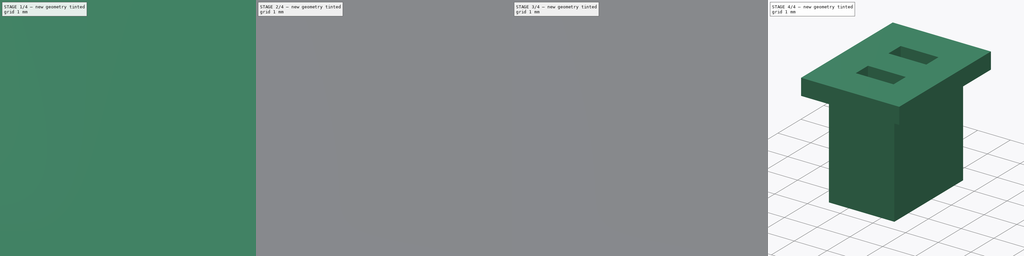
[diagram: build sequence overview — one tinted view per stage of 4, left to right]
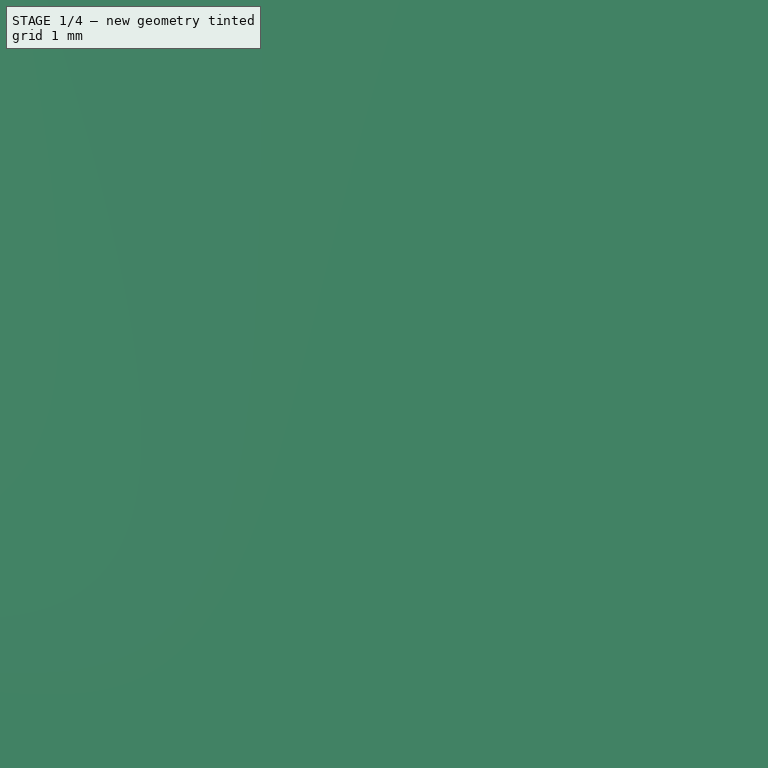
[diagram: stage 1 of 4 — iso view after this stage's code; geometry added in this stage tinted green]
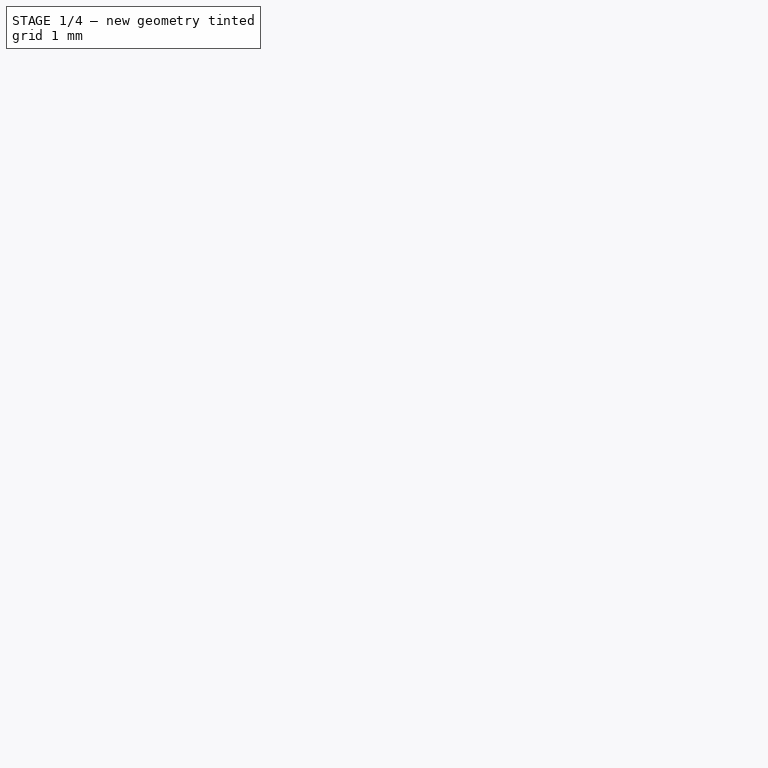
[diagram: stage 1 of 4 — front view after this stage's code; geometry added in this stage tinted green]
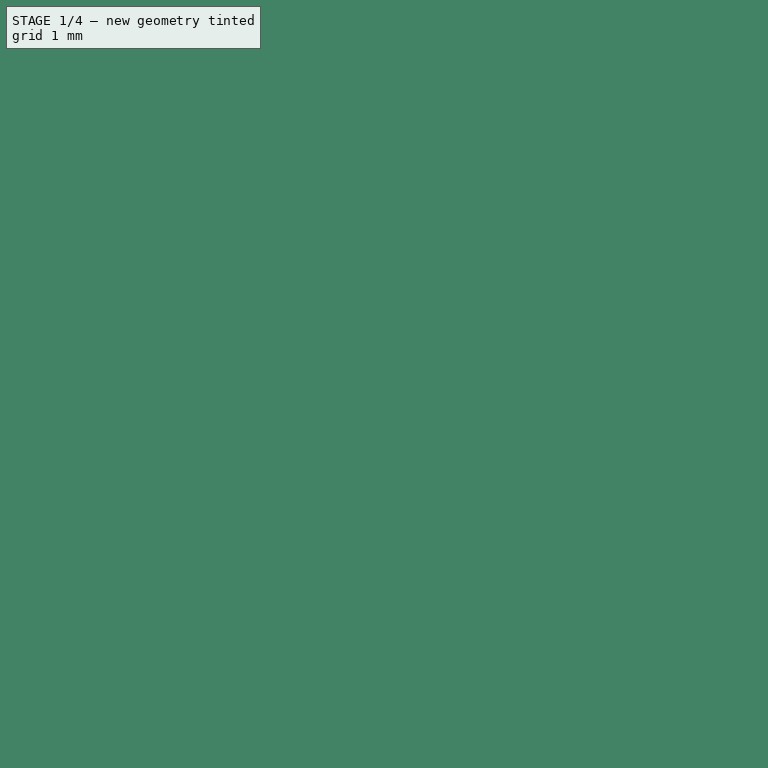
[diagram: stage 1 of 4 — top view after this stage's code; geometry added in this stage tinted green]
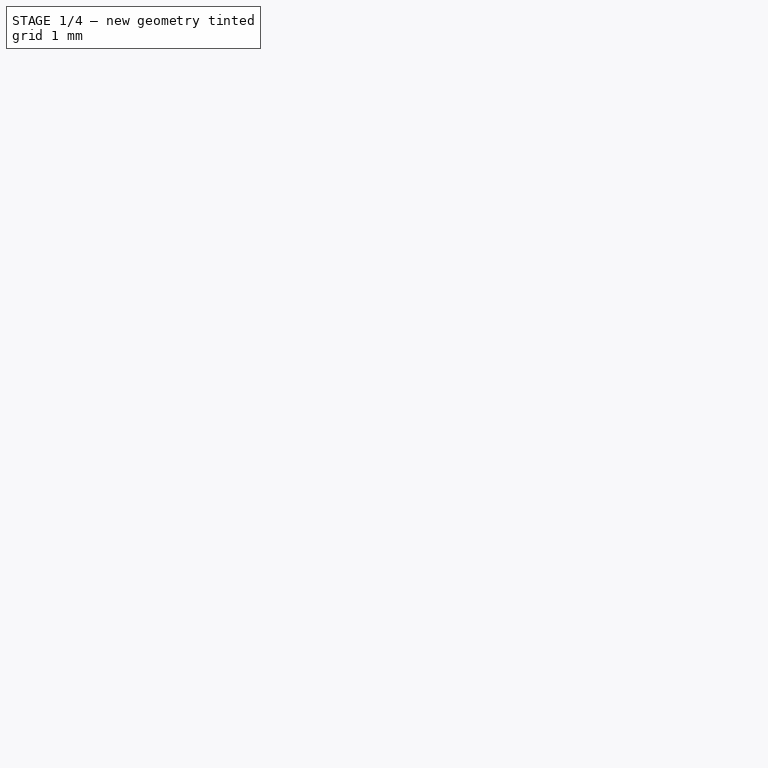
[diagram: stage 1 of 4 — right view after this stage's code; geometry added in this stage tinted green]
FCSTD DOCUMENT  (FreeCAD 0.20R29177 (Git))
Label: Litio_523450
License: All rights reserved
LicenseURL: http://en.wikipedia.org/wiki/All_rights_reserved
objects: Sketcher::SketchObject×13, PartDesign::Pad×4, PartDesign::Plane×4, PartDesign::AdditivePipe×4, PartDesign::Fillet×3, PartDesign::Body×2, PartDesign::ShapeBinder×1, PartDesign::Pocket×1, App::Part×1, Image::ImagePlane×1
note: 44 computed .brp shape members not serialized (recipe doc carries the construction recipe); baked Part::Feature solids carry a one-line shape summary decoded from their .brp

FEATURE [Sketcher::SketchObject] Sketch
  FullyConstrained = true
  MapMode = 5
  Support = -> [XY_Plane001]
  sketch-geometry (5):
    g0: LineSegment StartX=-26 StartY=-17 StartZ=0 EndX=-26 EndY=17 EndZ=0
    g1: LineSegment StartX=-26 StartY=17 StartZ=0 EndX=26 EndY=17 EndZ=0
    g2: LineSegment StartX=26 StartY=17 StartZ=0 EndX=26 EndY=-17 EndZ=0
    g3: LineSegment StartX=26 StartY=-17 StartZ=0 EndX=-26 EndY=-17 EndZ=0
    g4: GeomPoint X=0 Y=0 Z=0
  constraints (12):
    c: Coincident(g0,g1)
    c: Coincident(g1,g2)
    c: Coincident(g2,g3)
    c: Coincident(g3,g0)
    c: Horizontal(g1)
    c: Horizontal(g3)
    c: Vertical(g0)
    c: Vertical(g2)
    c: Symmetric(g1,g0,g4)
    c: Coincident(g4,g-1)
    c: DistanceX(g1,g1) = 52
    c: DistanceY(g2,g2) = 34
FEATURE [PartDesign::Pad] Pad
  Direction = (0,0,1)
  Length = 5
  Length2 = 10
  Midplane = true
  Profile = -> Sketch
  ReferenceAxis = -> Sketch [N_Axis]
  Refine = true
  Type = 0
FEATURE [PartDesign::Fillet] Fillet
  Base = -> Pad [Edge8,Edge5]
  BaseFeature = -> Pad
  Radius = 1
  Refine = true
  SupportTransform = false
  UseAllEdges = false
FEATURE [PartDesign::Fillet] Fillet001
  Base = -> Fillet [Edge15,Edge8]
  BaseFeature = -> Fillet
  Radius = 0.5
  Refine = true
  SupportTransform = false
  UseAllEdges = false
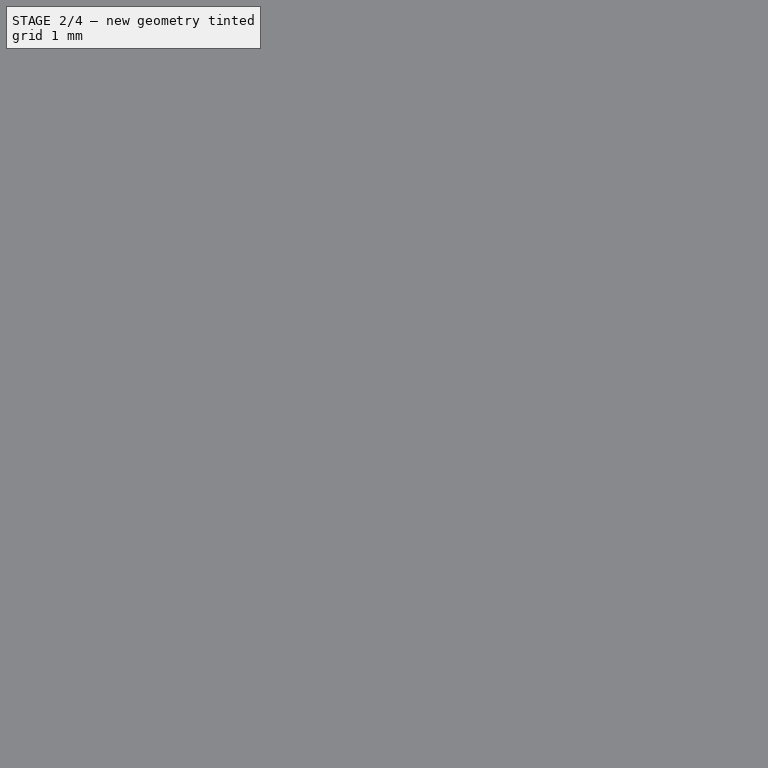
[diagram: stage 2 of 4 — iso view after this stage's code; geometry added in this stage tinted green]
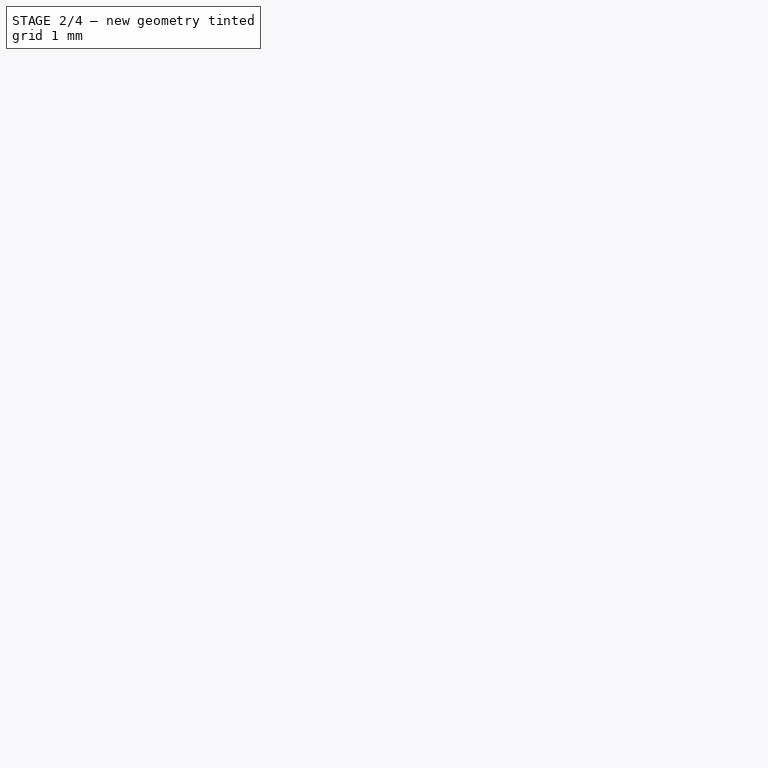
[diagram: stage 2 of 4 — front view after this stage's code; geometry added in this stage tinted green]
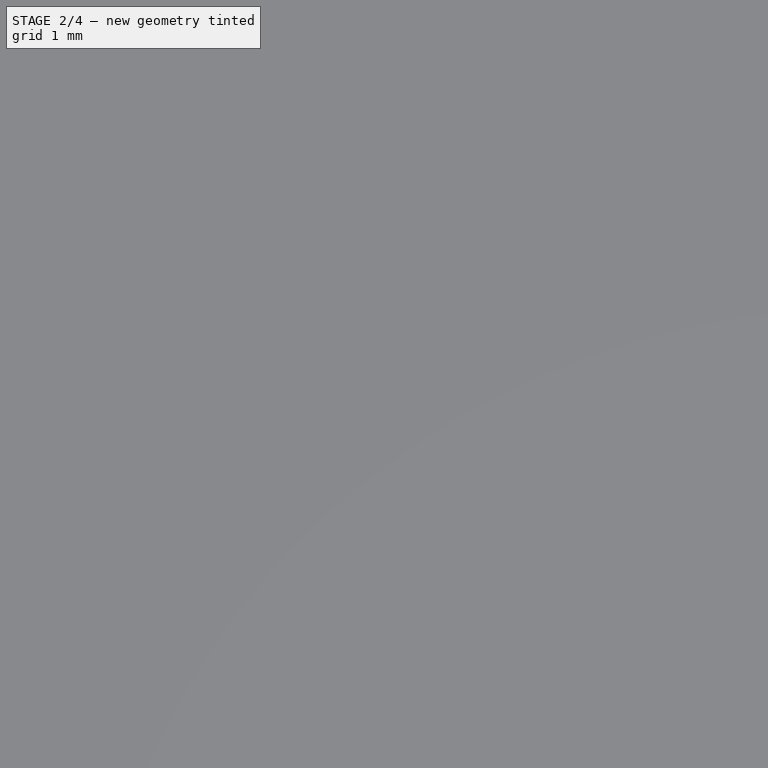
[diagram: stage 2 of 4 — top view after this stage's code; geometry added in this stage tinted green]
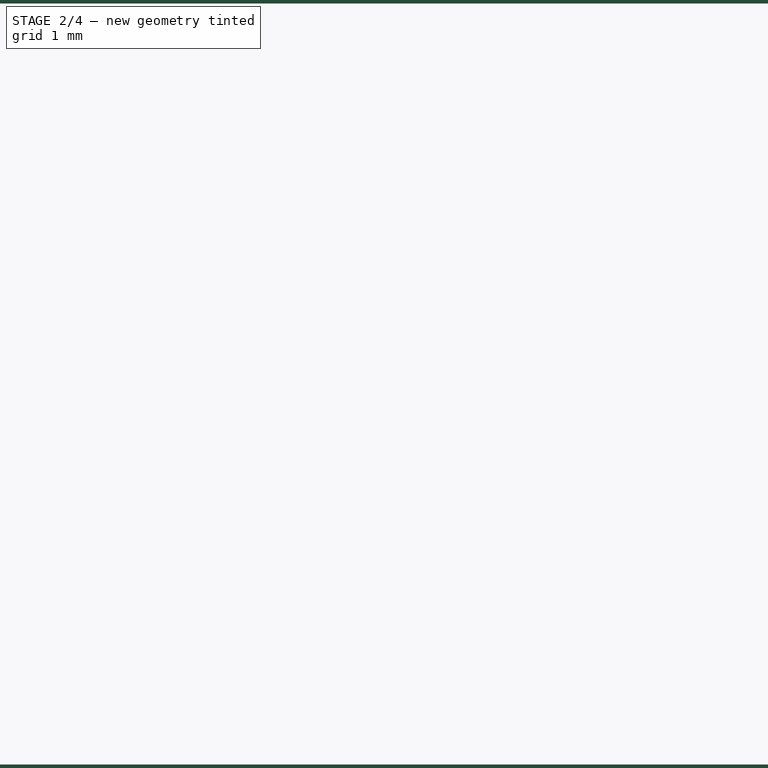
[diagram: stage 2 of 4 — right view after this stage's code; geometry added in this stage tinted green]
FEATURE [Sketcher::SketchObject] Sketch001
  ExternalGeometry = -> [Fillet001]
  FullyConstrained = true
  MapMode = 5
  Placement = pos=(-26,0,0) rot=(0.57735,-0.57735,-0.57735;2.0944rad)
  Support = -> [Fillet001]
  sketch-geometry (10):
    g0: ArcOfCircle CenterX=-16.5 CenterY=-2 CenterZ=0 NormalX=0 NormalY=0 NormalZ=1 AngleXU=0 Radius=0.6 StartAngle=3.14159 EndAngle=4.71239
    g1: LineSegment StartX=-17.1 StartY=-2 StartZ=0 EndX=-17.1 EndY=2 EndZ=0
    g2: ArcOfCircle CenterX=-16.5 CenterY=2 CenterZ=0 NormalX=0 NormalY=0 NormalZ=1 AngleXU=0 Radius=0.6 StartAngle=1.5708 EndAngle=3.14159
    g3: LineSegment StartX=-16.5 StartY=2.6 StartZ=0 EndX=16.5 EndY=2.6 EndZ=0
    g4: ArcOfCircle CenterX=16.5 CenterY=2 CenterZ=0 NormalX=0 NormalY=0 NormalZ=1 AngleXU=0 Radius=0.6 StartAngle=0 EndAngle=1.5708
    g5: LineSegment StartX=17.1 StartY=2 StartZ=0 EndX=17.1 EndY=-2 EndZ=0
    g6: ArcOfCircle CenterX=16.5 CenterY=-2 CenterZ=0 NormalX=0 NormalY=0 NormalZ=1 AngleXU=0 Radius=0.6 StartAngle=4.71239 EndAngle=6.28319
    g7: LineSegment StartX=16.5 StartY=-2.6 StartZ=0 EndX=-16.5 EndY=-2.6 EndZ=0
    g8: GeomPoint X=-17.1 Y=-2.6 Z=0
    g9: GeomPoint X=17.1 Y=2.6 Z=0
  constraints (21):
    c: Tangent(g0,g1) = 1.5708
    c: Tangent(g1,g2) = 1.5708
    c: Tangent(g2,g3) = 1.5708
    c: Tangent(g3,g4) = 1.5708
    c: Tangent(g4,g5) = 1.5708
    c: Tangent(g5,g6) = 1.5708
    c: Tangent(g6,g7) = 1.5708
    c: Tangent(g7,g0) = 1.5708
    c: Horizontal(g7)
    c: Vertical(g1)
    c: Vertical(g5)
    c: Equal(g0,g2)
    c: Equal(g2,g4)
    c: PointOnObject(g8,g1)
    c: PointOnObject(g8,g7)
    c: PointOnObject(g9,g3)
    c: PointOnObject(g9,g5)
    c: Symmetric(g2,g3,g-2)
    c: Symmetric(g3,g6,g-1)
    c: DistanceY(g-3,g3) = 0.1
    c: Coincident(g4,g-4)
FEATURE [PartDesign::Pad] Pad001
  BaseFeature = -> Fillet001
  Direction = (-1,0,0)
  Length = 7
  Length2 = 10
  Profile = -> Sketch001
  ReferenceAxis = -> Sketch001 [N_Axis]
  Refine = true
  Reversed = true
  Type = 0
FEATURE [PartDesign::Fillet] Fillet002
  Base = -> Pad001 [Edge49]
  BaseFeature = -> Pad001
  Radius = 0.5
  Refine = true
  SupportTransform = false
  UseAllEdges = false
FEATURE [Sketcher::SketchObject] Sketch002
  ExternalGeometry = -> [Fillet002]
  FullyConstrained = true
  MapMode = 5
  Placement = pos=(0,-17.1,0) rot=(1,0,0;1.5708rad)
  Support = -> [Fillet002]
  sketch-geometry (1):
    g0: Circle CenterX=-25.5 CenterY=0.5 CenterZ=0 NormalX=0 NormalY=0 NormalZ=1 AngleXU=0 Radius=0.35
  constraints (3):
    c: Diameter(g0) = 0.7
    c: DistanceY(g-1,g0) = 0.5
    c: DistanceX(g-3,g0) = 0.5
FEATURE [PartDesign::Plane] DatumPlane
  AttachmentOffset = pos=(0,0,0.5) rot=(0,0,1;0rad)
  Length = 65.3823
  MapMode = 5
  Placement = pos=(0,0,0.5) rot=(0,0,1;0rad)
  ResizeMode = 0
  Support = -> [XY_Plane001]
  Width = 60.4789
FEATURE [Sketcher::SketchObject] Sketch003
  ExternalGeometry = -> [Fillet002]
  FullyConstrained = true
  MapMode = 5
  Placement = pos=(0,0,0.5) rot=(0,0,1;0rad)
  Support = -> [DatumPlane]
  sketch-geometry (9):
    g0: LineSegment StartX=-25.5 StartY=-17.1 StartZ=0 EndX=-25.5 EndY=-18.1 EndZ=0
    g1: LineSegment StartX=-26.1 StartY=-18.7 StartZ=0 EndX=-26.4 EndY=-18.7 EndZ=0
    g2: LineSegment StartX=-27 StartY=-18.1 StartZ=0 EndX=-27 EndY=9.9 EndZ=0
    g3: ArcOfCircle CenterX=-26.1 CenterY=-18.1 CenterZ=0 NormalX=0 NormalY=0 NormalZ=1 AngleXU=0 Radius=0.6 StartAngle=4.71239 EndAngle=6.28319
    g4: ArcOfCircle CenterX=-26.4 CenterY=-18.1 CenterZ=0 NormalX=0 NormalY=0 NormalZ=1 AngleXU=0 Radius=0.6 StartAngle=3.14159 EndAngle=4.71239
    g5: LineSegment StartX=-27.6 StartY=10.5 StartZ=0 EndX=-27.9 EndY=10.5 EndZ=0
    g6: LineSegment StartX=-28.5 StartY=9.9 StartZ=0 EndX=-28.5 EndY=6.9 EndZ=0
    g7: ArcOfCircle CenterX=-27.6 CenterY=9.9 CenterZ=0 NormalX=0 NormalY=0 NormalZ=1 AngleXU=0 Radius=0.6 StartAngle=-9e-16 EndAngle=1.5708
    g8: ArcOfCircle CenterX=-27.9 CenterY=9.9 CenterZ=0 NormalX=0 NormalY=0 NormalZ=1 AngleXU=0 Radius=0.6 StartAngle=1.5708 EndAngle=3.14159
  constraints (23):
    c: Coincident(g-3,g0)
    c: Vertical(g0)
    c: Horizontal(g1)
    c: Vertical(g2)
    c: Tangent(g0,g3) = 1.5708
    c: Tangent(g1,g3) = 1.5708
    c: Tangent(g1,g4) = 1.5708
    c: Tangent(g2,g4) = 1.5708
    c: DistanceY(g0,g0) = 1
    c: Equal(g3,g4)
    c: DistanceX(g2,g0) = 1.5
    c: Horizontal(g5)
    c: Vertical(g6)
    c: Radius(g3) = 0.6
    c: Tangent(g2,g7) = -1.5708
    c: Tangent(g5,g7) = -1.5708
    c: Tangent(g5,g8) = -1.5708
    c: Tangent(g6,g8) = -1.5708
    c: Equal(g7,g8)
    c: Equal(g7,g4)
    c: DistanceX(g6,g2) = 1.5
    c: DistanceY(g2,g2) = 28
    c: DistanceY(g6,g6) = 3
FEATURE [PartDesign::Plane] DatumPlane001
  AttachmentOffset = pos=(0,0,-28.5) rot=(0,0,1;0rad)
  Length = 60
  MapMode = 5
  Placement = pos=(-28.5,6.3e-15,-6.3e-15) rot=(0.57735,0.57735,0.57735;2.0944rad)
  ResizeMode = 0
  Support = -> [YZ_Plane001]
  Width = 60
FEATURE [Sketcher::SketchObject] Sketch004
  ExternalGeometry = -> [Sketch003]
  FullyConstrained = true
  MapMode = 5
  Placement = pos=(-28.5,6.3e-15,-6.3e-15) rot=(0.57735,0.57735,0.57735;2.0944rad)
  Support = -> [DatumPlane001]
  sketch-geometry (2):
    g0: ArcOfCircle CenterX=6.9 CenterY=-0.1 CenterZ=0 NormalX=0 NormalY=0 NormalZ=1 AngleXU=0 Radius=0.6 StartAngle=1.5708 EndAngle=3.14159
    g1: LineSegment StartX=6.3 StartY=-0.1 StartZ=0 EndX=6.3 EndY=-1.1 EndZ=0
  constraints (6):
    c: Coincident(g0,g-3)
    c: Vertical(g1)
    c: Tangent(g-4,g0)
    c: Tangent(g1,g0) = -1.5708
    c: Radius(g0) = 0.6
    c: DistanceY(g1,g1) = 1
FEATURE [PartDesign::AdditivePipe] AdditivePipe
  AuxilleryCurvelinear = true
  AuxillerySpineTangent = false
  BaseFeature = -> Fillet002
  Binormal = (0,0,0)
  Mode = 0
  Profile = -> Sketch002
  Refine = true
  Spine = -> Sketch003
  SpineTangent = false
  Transformation = 0
  Transition = 0
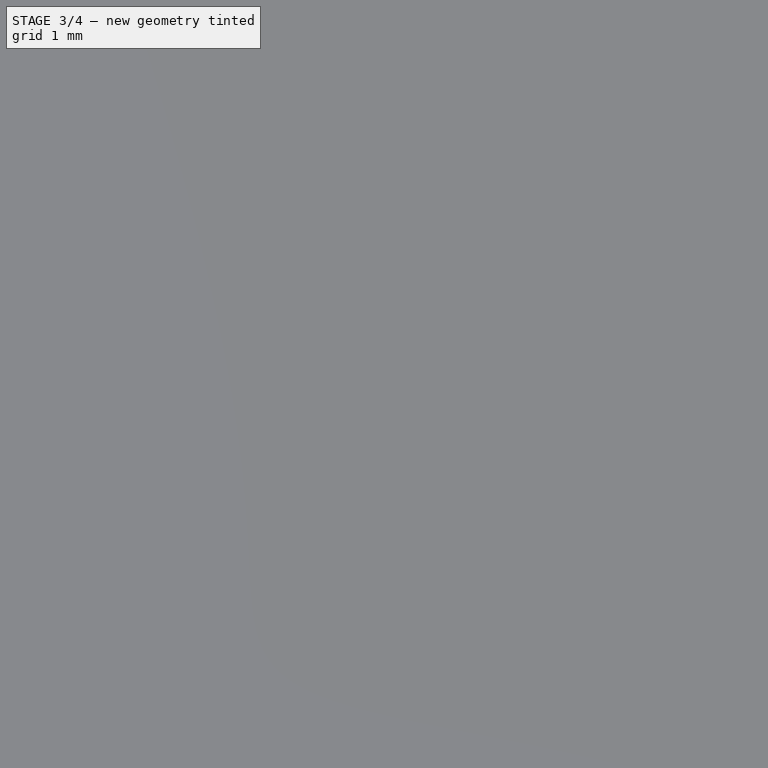
[diagram: stage 3 of 4 — iso view after this stage's code; geometry added in this stage tinted green]
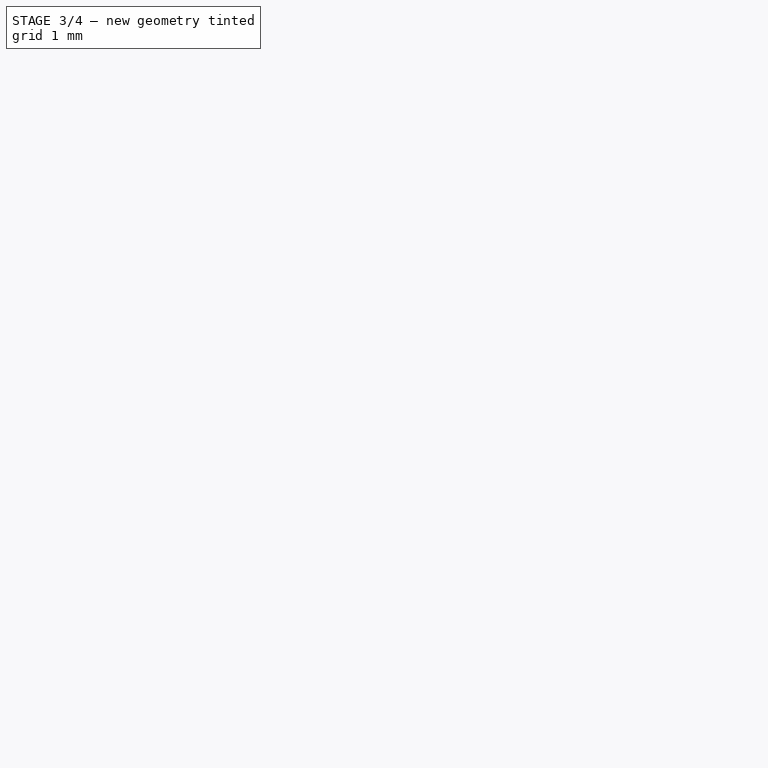
[diagram: stage 3 of 4 — front view after this stage's code; geometry added in this stage tinted green]
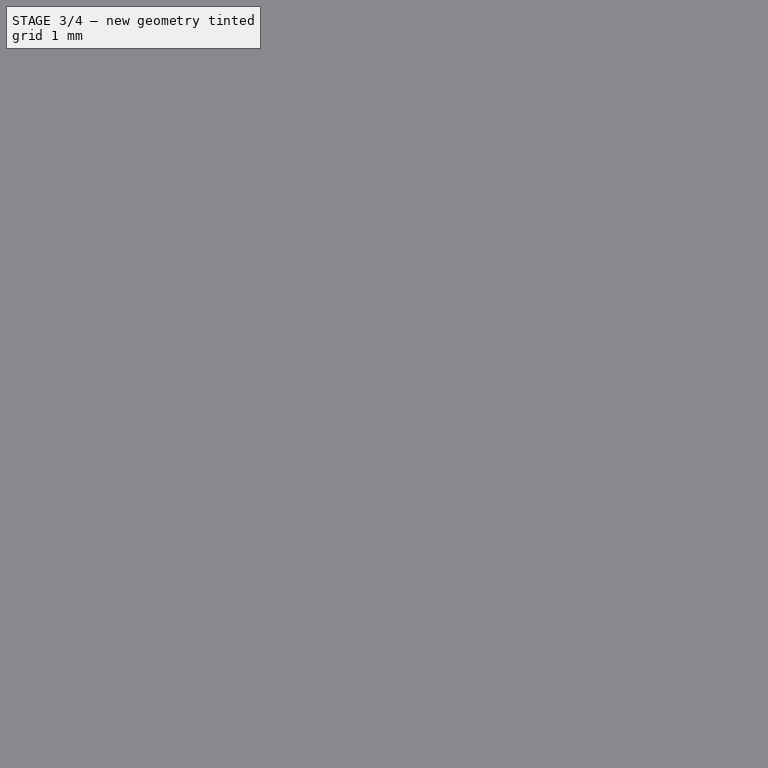
[diagram: stage 3 of 4 — top view after this stage's code; geometry added in this stage tinted green]
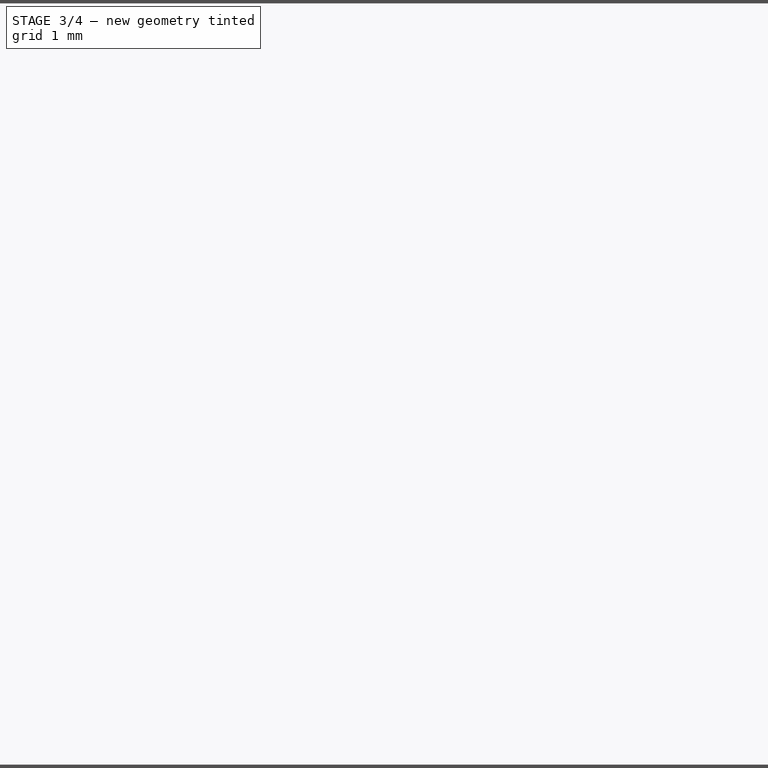
[diagram: stage 3 of 4 — right view after this stage's code; geometry added in this stage tinted green]
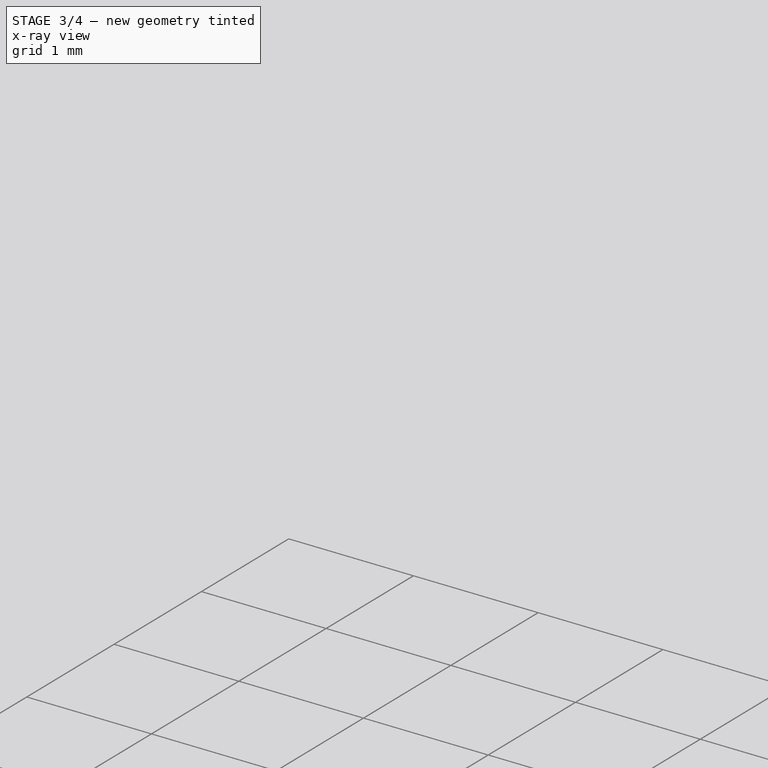
[diagram: stage 3 of 4 — x-ray composite at the iso view; earlier geometry ghosted, this stage's added geometry solid]
FEATURE [Sketcher::SketchObject] Sketch005
  ExternalGeometry = -> [AdditivePipe]
  FullyConstrained = true
  MapMode = 5
  Placement = pos=(0,6.9,0) rot=(1,0,0;1.5708rad)
  Support = -> [AdditivePipe]
  sketch-geometry (1):
    g0: Circle CenterX=-28.5 CenterY=0.5 CenterZ=0 NormalX=0 NormalY=0 NormalZ=1 AngleXU=0 Radius=0.35
  constraints (2):
    c: Coincident(g0,g-3)
    c: Equal(g0,g-3)
FEATURE [PartDesign::AdditivePipe] AdditivePipe001
  AuxilleryCurvelinear = true
  AuxillerySpineTangent = false
  BaseFeature = -> AdditivePipe
  Binormal = (0,0,0)
  Mode = 0
  Profile = -> Sketch005
  Refine = true
  Spine = -> Sketch004
  SpineTangent = false
  Transformation = 0
  Transition = 0
FEATURE [Sketcher::SketchObject] Sketch006
  ExternalGeometry = -> [AdditivePipe001]
  FullyConstrained = true
  MapMode = 5
  Placement = pos=(0,-17.1,0) rot=(1,0,0;1.5708rad)
  Support = -> [AdditivePipe001]
  sketch-geometry (1):
    g0: Circle CenterX=-25.5 CenterY=-0.5 CenterZ=0 NormalX=0 NormalY=0 NormalZ=1 AngleXU=0 Radius=0.35
  constraints (4):
    c: DistanceY(g0,g-1) = 0.5
    c: Diameter(g0) = 0.7
    c: Diameter(g-3) = 0.7
    c: Vertical(g0,g-3)
FEATURE [PartDesign::Plane] DatumPlane002
  AttachmentOffset = pos=(0,0,-0.5) rot=(0,0,1;0rad)
  Length = 65.3823
  MapMode = 5
  Placement = pos=(0,0,-0.5) rot=(0,0,1;0rad)
  ResizeMode = 0
  Support = -> [XY_Plane001]
  Width = 60.4789
FEATURE [Sketcher::SketchObject] Sketch007
  ExternalGeometry = -> [AdditivePipe001]
  FullyConstrained = false
  MapMode = 5
  Placement = pos=(0,0,-0.5) rot=(0,0,1;0rad)
  Support = -> [DatumPlane002]
  sketch-geometry (10):
    g0: LineSegment StartX=-25.5 StartY=-17.1 StartZ=0 EndX=-25.5 EndY=-17.5147 EndZ=0
    g1: LineSegment StartX=-25.781 StartY=-17.7957 StartZ=0 EndX=-26.0557 EndY=-17.7957 EndZ=0
    g2: LineSegment StartX=-26.3366 StartY=-17.5147 StartZ=0 EndX=-26.3366 EndY=8.91505 EndZ=0
    g3: LineSegment StartX=-26.6176 StartY=9.19603 StartZ=0 EndX=-27.1886 EndY=9.19603 EndZ=0
    g4: LineSegment StartX=-27.4696 StartY=8.91505 StartZ=0 EndX=-27.4696 EndY=5.59873 EndZ=0
    g5: ArcOfCircle CenterX=-28.0685 CenterY=5.59873 CenterZ=0 NormalX=0 NormalY=0 NormalZ=1 AngleXU=0 Radius=0.598877 StartAngle=4.73441 EndAngle=6.28319
    g6: ArcOfCircle CenterX=-27.1886 CenterY=8.91505 CenterZ=0 NormalX=0 NormalY=0 NormalZ=1 AngleXU=0 Radius=0.280985 StartAngle=1.5708 EndAngle=3.14159
    g7: ArcOfCircle CenterX=-26.6176 CenterY=8.91505 CenterZ=0 NormalX=0 NormalY=0 NormalZ=1 AngleXU=0 Radius=0.280985 StartAngle=-9e-16 EndAngle=1.5708
    g8: ArcOfCircle CenterX=-26.0557 CenterY=-17.5147 CenterZ=0 NormalX=0 NormalY=0 NormalZ=1 AngleXU=0 Radius=0.280985 StartAngle=3.14159 EndAngle=4.71239
    g9: ArcOfCircle CenterX=-25.781 CenterY=-17.5147 CenterZ=0 NormalX=0 NormalY=0 NormalZ=1 AngleXU=0 Radius=0.280985 StartAngle=4.71239 EndAngle=6.28319
  constraints (19):
    c: Coincident(g-3,g0)
    c: Vertical(g0)
    c: Horizontal(g1)
    c: Vertical(g2)
    c: Horizontal(g3)
    c: Vertical(g4)
    c: Tangent(g4,g5) = 1.5708
    c: Tangent(g3,g6) = -1.5708
    c: Tangent(g4,g6) = -1.5708
    c: Tangent(g2,g7) = -1.5708
    c: Tangent(g3,g7) = -1.5708
    c: Tangent(g1,g8) = 1.5708
    c: Tangent(g2,g8) = 1.5708
    c: Tangent(g1,g9) = 1.5708
    c: Tangent(g0,g9) = 1.5708
    c: Equal(g8,g9)
    c: Equal(g9,g7)
    c: Equal(g7,g6)
    c: DistanceY(g5) = 5
FEATURE [PartDesign::AdditivePipe] AdditivePipe002
  AuxilleryCurvelinear = true
  AuxillerySpineTangent = false
  BaseFeature = -> AdditivePipe001
  Binormal = (0,0,0)
  Mode = 0
  Profile = -> Sketch006
  Refine = true
  Spine = -> Sketch007
  SpineTangent = false
  Transformation = 0
  Transition = 0
FEATURE [Sketcher::SketchObject] Sketch008
  ExternalGeometry = -> [AdditivePipe002]
  FullyConstrained = true
  MapMode = 5
  Placement = pos=(-27.9316,-0.615197,1.637e-13) rot=(0.585826,-0.573065,-0.573065;2.08173rad)
  Support = -> [AdditivePipe002]
  sketch-geometry (1):
    g0: Circle CenterX=-5.61656 CenterY=-0.5 CenterZ=0 NormalX=0 NormalY=0 NormalZ=1 AngleXU=0 Radius=0.35
  constraints (2):
    c: Coincident(g0,g-3)
    c: Equal(g0,g-3)
FEATURE [PartDesign::Plane] DatumPlane003
  AttachmentOffset = pos=(0,0,-5) rot=(0,0,1;0rad)
  Length = 65.3823
  MapMode = 5
  Placement = pos=(0,5,-1.1e-15) rot=(1,0,0;1.5708rad)
  ResizeMode = 0
  Support = -> [XZ_Plane001]
  Width = 60.4789
FEATURE [Sketcher::SketchObject] Sketch009
  ExternalGeometry = -> [Sketch008]
  FullyConstrained = false
  MapMode = 5
  Placement = pos=(0,5,-1.1e-15) rot=(1,0,0;1.5708rad)
  Support = -> [DatumPlane003]
  sketch-geometry (1):
    g0: ArcOfCircle CenterX=-28.0553 CenterY=-1.00013 CenterZ=0 NormalX=0 NormalY=0 NormalZ=1 AngleXU=0 Radius=0.500129 StartAngle=1.5708 EndAngle=3.15795
  constraints (2):
    c: Vertical(g0,g-3)
    c: Coincident(g0,g-3)
FEATURE [PartDesign::AdditivePipe] AdditivePipe003
  AuxilleryCurvelinear = true
  AuxillerySpineTangent = false
  BaseFeature = -> AdditivePipe002
  Binormal = (0,0,0)
  Mode = 0
  Profile = -> Sketch008
  Refine = true
  Spine = -> Sketch009
  SpineTangent = false
  Transformation = 0
  Transition = 0
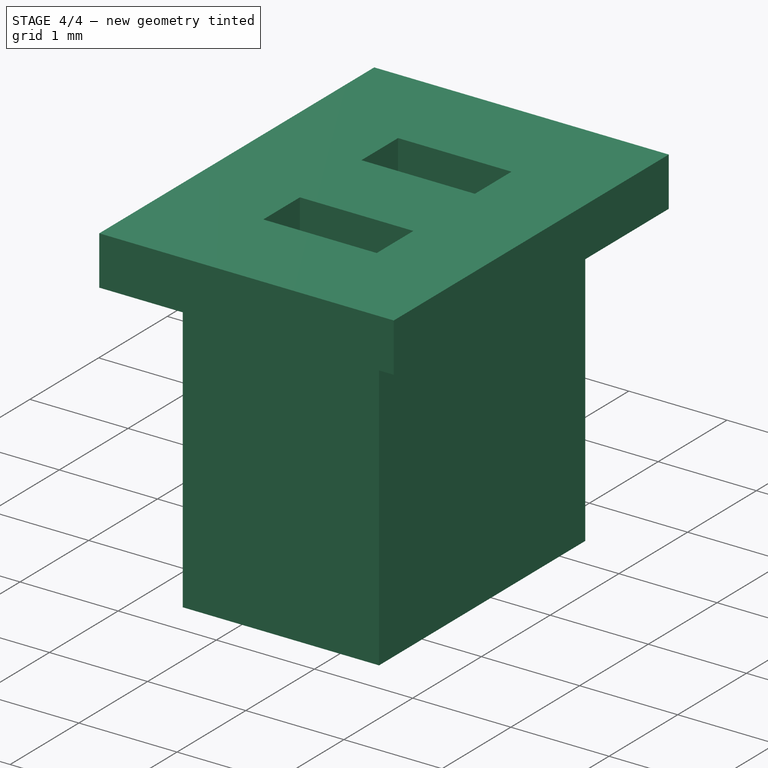
[diagram: stage 4 of 4 — iso view after this stage's code; geometry added in this stage tinted green]
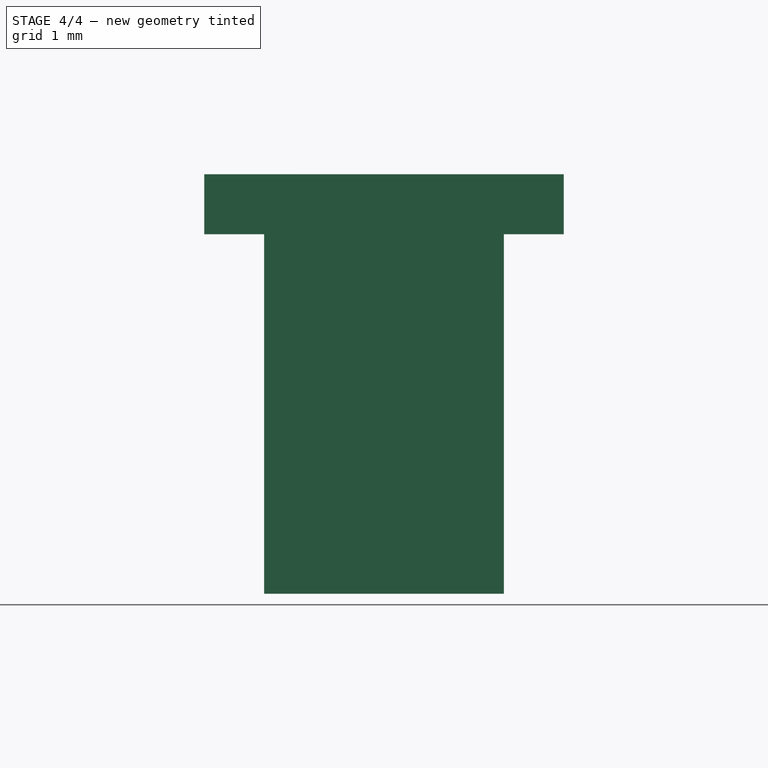
[diagram: stage 4 of 4 — front view after this stage's code; geometry added in this stage tinted green]
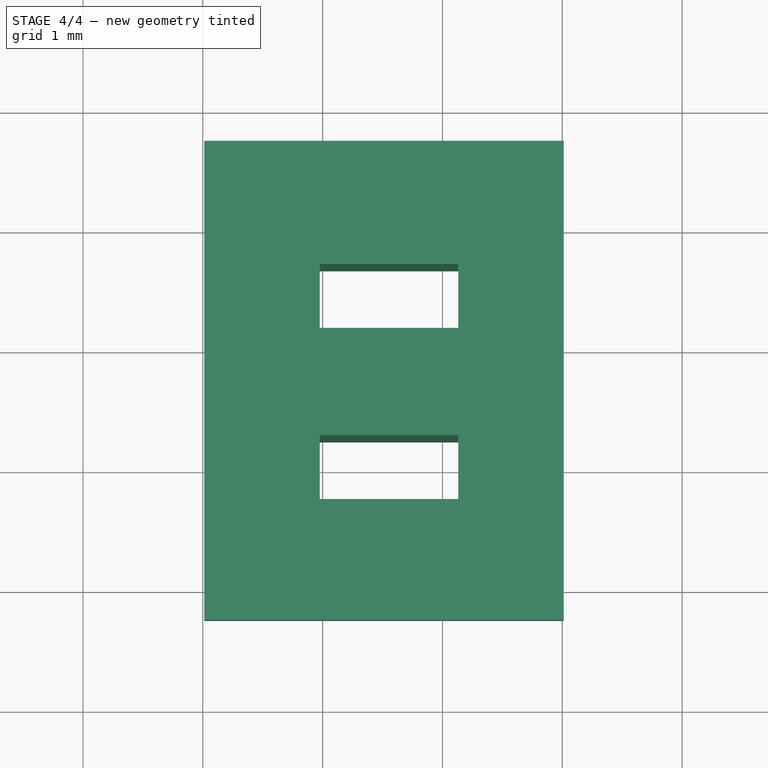
[diagram: stage 4 of 4 — top view after this stage's code; geometry added in this stage tinted green]
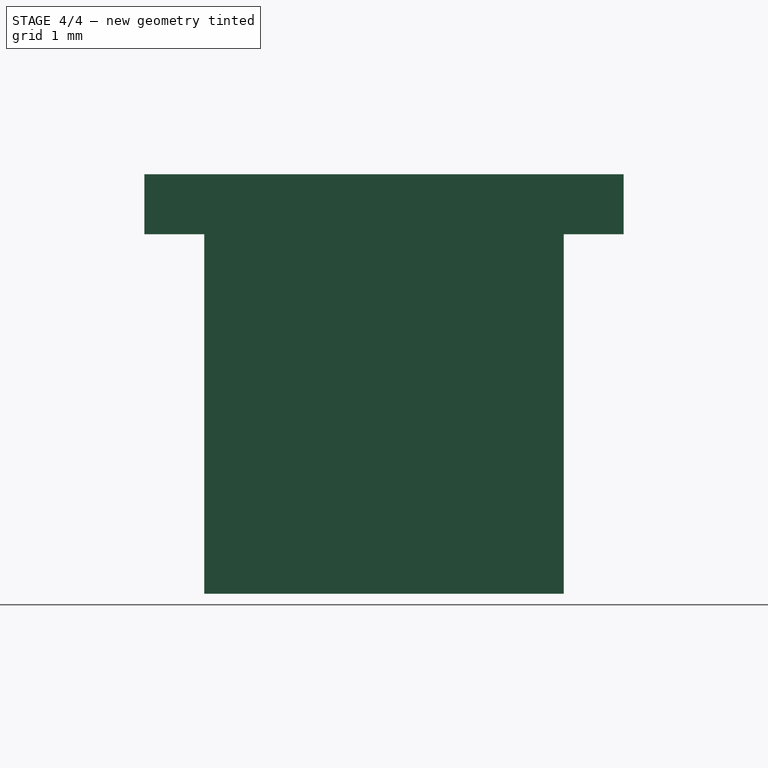
[diagram: stage 4 of 4 — right view after this stage's code; geometry added in this stage tinted green]
FEATURE [PartDesign::Body] Body
  Group = -> [Sketch,Pad,Fillet,Fillet001,Sketch001,Pad001,Fillet002,Sketch002,DatumPlane,Sketch003,DatumPlane001,Sketch004,AdditivePipe,Sketch005,AdditivePipe001,Sketch006,DatumPlane002,Sketch007,AdditivePipe002,Sketch008,DatumPlane003,Sketch009,AdditivePipe003]
  Origin = -> Origin001
  Tip = -> AdditivePipe003
FEATURE [PartDesign::ShapeBinder] ShapeBinder
  Support = -> [AdditivePipe003]
  TraceSupport = false
FEATURE [Sketcher::SketchObject] Sketch010
  FullyConstrained = false
  MapMode = 5
  Placement = pos=(0,1.4109e-08,-1.1) rot=(1,0,0;3.14159rad)
  Support = -> [ShapeBinder]
  sketch-geometry (4):
    g0: LineSegment StartX=-29.9876 StartY=-3.70796 StartZ=0 EndX=-26.9876 EndY=-3.70796 EndZ=0
    g1: LineSegment StartX=-26.9876 StartY=-3.70796 StartZ=0 EndX=-26.9876 EndY=-7.70796 EndZ=0
    g2: LineSegment StartX=-26.9876 StartY=-7.70796 StartZ=0 EndX=-29.9876 EndY=-7.70796 EndZ=0
    g3: LineSegment StartX=-29.9876 StartY=-7.70796 StartZ=0 EndX=-29.9876 EndY=-3.70796 EndZ=0
  constraints (10):
    c: Coincident(g0,g1)
    c: Coincident(g1,g2)
    c: Coincident(g2,g3)
    c: Coincident(g3,g0)
    c: Horizontal(g0)
    c: Horizontal(g2)
    c: Vertical(g1)
    c: Vertical(g3)
    c: DistanceY(g3,g3) = 4
    c: DistanceX(g0,g0) = 3
FEATURE [PartDesign::Pad] Pad002
  Direction = (0,1.28264e-08,-1)
  Length = 0.5
  Length2 = 10
  Profile = -> Sketch010
  ReferenceAxis = -> Sketch010 [N_Axis]
  Refine = true
  Type = 0
FEATURE [Sketcher::SketchObject] Sketch011
  ExternalGeometry = -> [Pad002]
  FullyConstrained = true
  MapMode = 5
  Placement = pos=(0,2.05222e-08,-1.6) rot=(1,0,0;3.14159rad)
  Support = -> [Pad002]
  sketch-geometry (4):
    g0: LineSegment StartX=-29.4876 StartY=-4.20796 StartZ=0 EndX=-27.4876 EndY=-4.20796 EndZ=0
    g1: LineSegment StartX=-27.4876 StartY=-4.20796 StartZ=0 EndX=-27.4876 EndY=-7.20796 EndZ=0
    g2: LineSegment StartX=-27.4876 StartY=-7.20796 StartZ=0 EndX=-29.4876 EndY=-7.20796 EndZ=0
    g3: LineSegment StartX=-29.4876 StartY=-7.20796 StartZ=0 EndX=-29.4876 EndY=-4.20796 EndZ=0
  constraints (12):
    c: Coincident(g0,g1)
    c: Coincident(g1,g2)
    c: Coincident(g2,g3)
    c: Coincident(g3,g0)
    c: Horizontal(g0)
    c: Horizontal(g2)
    c: Vertical(g1)
    c: Vertical(g3)
    c: DistanceX(g0,g0) = 2
    c: DistanceY(g3,g3) = 3
    c: DistanceX(g-3,g0) = 0.5
    c: DistanceY(g0,g-3) = 0.5
FEATURE [PartDesign::Pad] Pad003
  BaseFeature = -> Pad002
  Direction = (0,1.28264e-08,-1)
  Length = 3
  Length2 = 10
  Profile = -> Sketch011
  ReferenceAxis = -> Sketch011 [N_Axis]
  Refine = true
  Type = 0
FEATURE [Sketcher::SketchObject] Sketch012
  FullyConstrained = false
  MapMode = 5
  Placement = pos=(0,5.90012e-08,-4.6) rot=(1,0,0;3.14159rad)
  Support = -> [Pad003]
  sketch-geometry (8):
    g0: LineSegment StartX=-29.024 StartY=-4.71758 StartZ=0 EndX=-27.8679 EndY=-4.71758 EndZ=0
    g1: LineSegment StartX=-27.8679 StartY=-4.71758 StartZ=0 EndX=-27.8679 EndY=-5.25029 EndZ=0
    g2: LineSegment StartX=-27.8679 StartY=-5.25029 StartZ=0 EndX=-29.024 EndY=-5.25029 EndZ=0
    g3: LineSegment StartX=-29.024 StartY=-5.25029 StartZ=0 EndX=-29.024 EndY=-4.71758 EndZ=0
    g4: LineSegment StartX=-29.024 StartY=-6.14569 StartZ=0 EndX=-27.8679 EndY=-6.14569 EndZ=0
    g5: LineSegment StartX=-27.8679 StartY=-6.14569 StartZ=0 EndX=-27.8679 EndY=-6.6784 EndZ=0
    g6: LineSegment StartX=-27.8679 StartY=-6.6784 StartZ=0 EndX=-29.024 EndY=-6.6784 EndZ=0
    g7: LineSegment StartX=-29.024 StartY=-6.6784 StartZ=0 EndX=-29.024 EndY=-6.14569 EndZ=0
  constraints (19):
    c: Coincident(g0,g1)
    c: Coincident(g1,g2)
    c: Coincident(g2,g3)
    c: Coincident(g3,g0)
    c: Horizontal(g0)
    c: Horizontal(g2)
    c: Vertical(g1)
    c: Vertical(g3)
    c: Coincident(g4,g5)
    c: Coincident(g5,g6)
    c: Coincident(g6,g7)
    c: Coincident(g7,g4)
    c: Horizontal(g4)
    c: Horizontal(g6)
    c: Vertical(g5)
    c: Vertical(g7)
    c: Vertical(g2,g4)
    c: Vertical(g1,g4)
    c: Equal(g3,g7)
FEATURE [PartDesign::Pocket] Pocket
  BaseFeature = -> Pad003
  Direction = (0,-1.28264e-08,1)
  Length = 5
  Length2 = 5
  Profile = -> Sketch012
  ReferenceAxis = -> Sketch012 [N_Axis]
  Refine = true
  Type = 0
FEATURE [PartDesign::Body] Body001  label="Conector"
  Group = -> [ShapeBinder,Sketch010,Pad002,Sketch011,Pad003,Sketch012,Pocket]
  Origin = -> Origin002
  Tip = -> Pocket
FEATURE [App::Part] Part
  Group = -> [Body,Body001]
  Origin = -> Origin
FEATURE [Image::ImagePlane] ImagePlane
  Placement = pos=(2.3,0,3) rot=(0,0,1;0rad)
  XSize = 33.72
  YSize = 17.14
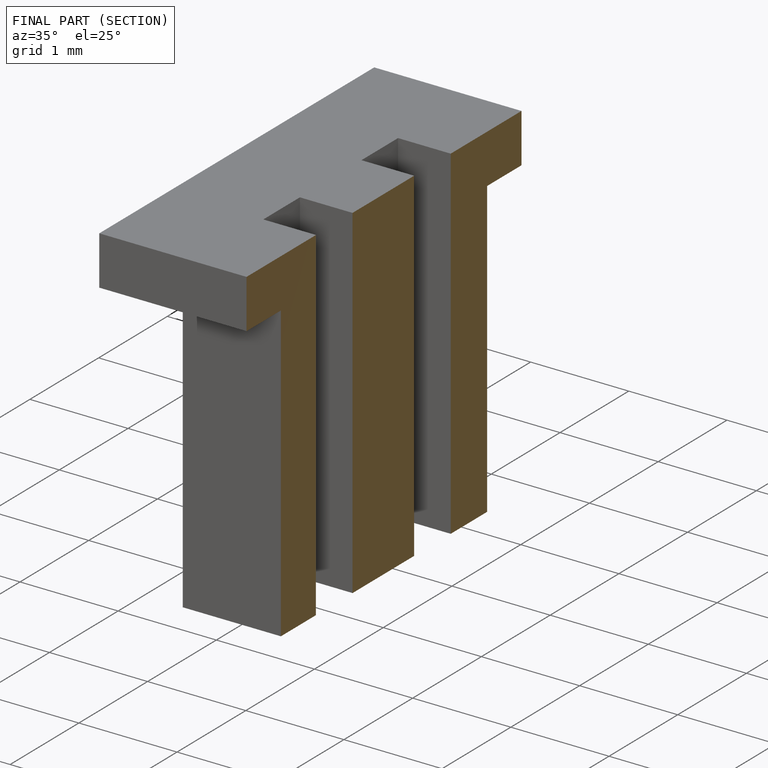
[diagram: finished part — half-section view (interior)]
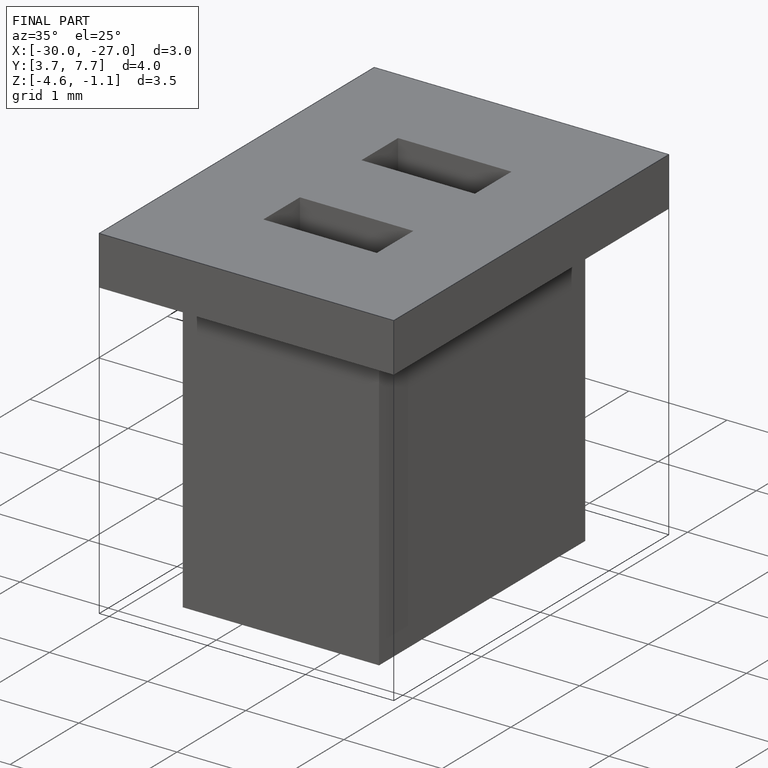
[diagram: finished part — iso view with bounding-box wireframe]
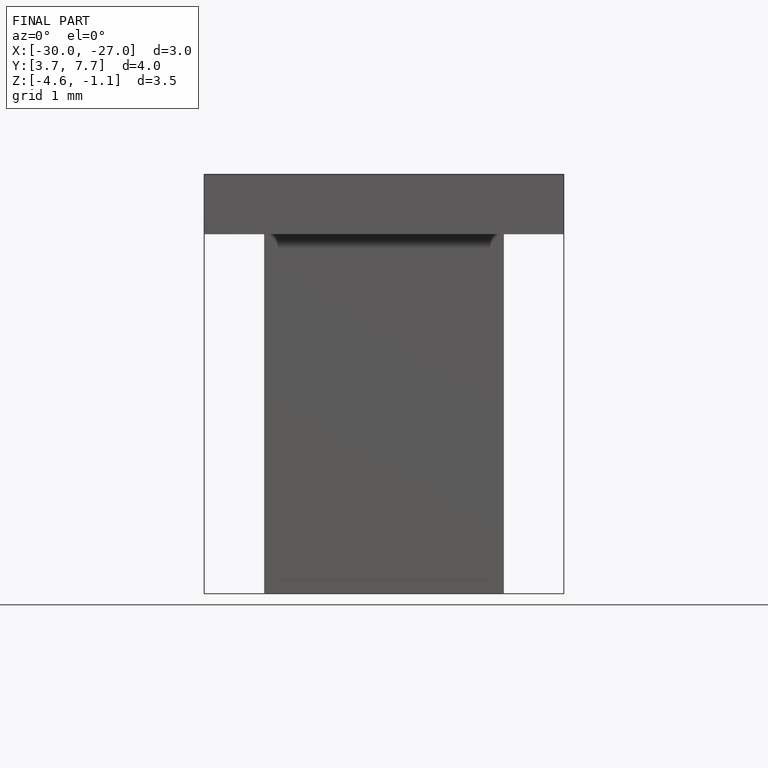
[diagram: finished part — front view with bounding-box wireframe]
